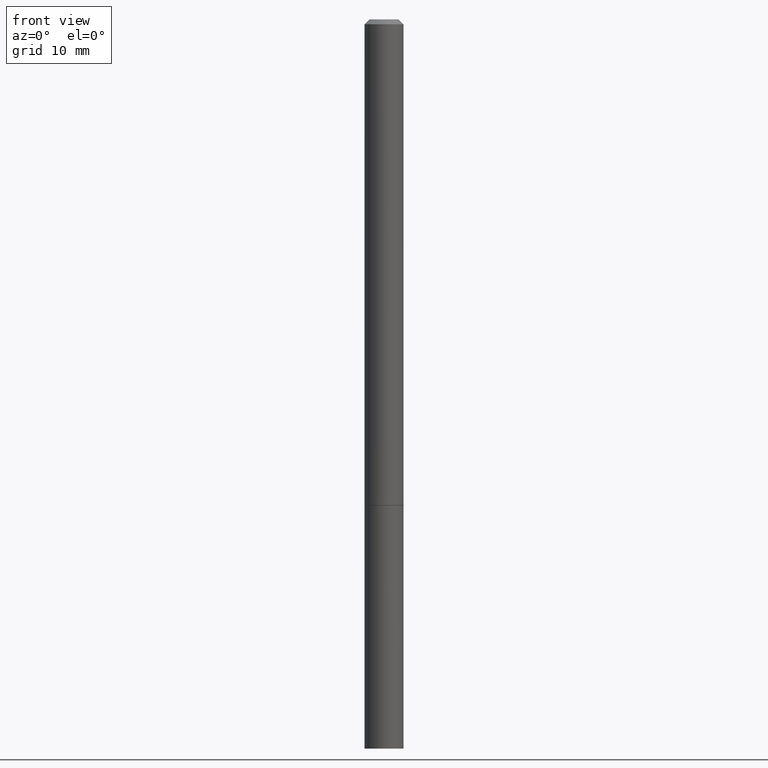
[diagram: clean part render]
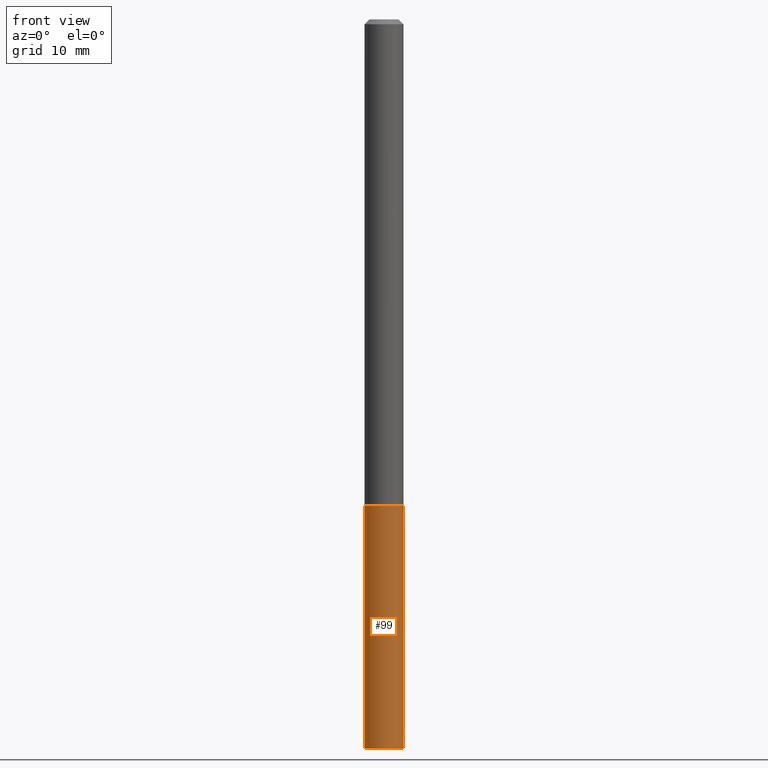
[diagram: same view with one face highlighted and labeled with its STEP entity id]
A machine part, front view. The second image highlights one B-rep face of the part: STEP entity #99.
In plain terms, the highlighted cylindrical surface (edge-blend (fillet) strip) has radius 2.0002 mm, axis along (-0, 0, 1).
Its self-contained STEP definition (entity closure, byte-faithful):
#14 = VERTEX_POINT ( 'NONE', #362 ) ;
#17 = ORIENTED_EDGE ( 'NONE', *, *, #106, .T. ) ;
#19 = EDGE_CURVE ( 'NONE', #14, #48, #20, .T. ) ;
#20 = LINE ( 'NONE', #168, #198 ) ;
#26 = DIRECTION ( 'NONE',  ( -2.445468806185136597E-29, 3.491481338843145583E-15, 1.000000000000000000 ) ) ;
#48 = VERTEX_POINT ( 'NONE', #339 ) ;
#49 = VERTEX_POINT ( 'NONE', #359 ) ;
#52 = CARTESIAN_POINT ( 'NONE',  ( 0.000000000000000000, 0.000000000000000000, 0.000000000000000000 ) ) ;
#56 = DIRECTION ( 'NONE',  ( -2.445468806185136597E-29, 3.491481338843145583E-15, 1.000000000000000000 ) ) ;
#78 = DIRECTION ( 'NONE',  ( -2.445468806185136877E-29, 3.491481338843145188E-15, 1.000000000000000000 ) ) ;
#87 = CARTESIAN_POINT ( 'NONE',  ( 7.220980290903470182E-29, -1.030964609733603853E-14, -2.952799999999999869 ) ) ;
#88 = DIRECTION ( 'NONE',  ( 1.000000000000000000, -6.982962677686261977E-15, 0.000000000000000000 ) ) ;
#94 = CIRCLE ( 'NONE', #146, 0.07875000000000000056 ) ;
#99 = ADVANCED_FACE ( 'NONE', ( #223 ), #203, .T. ) ;
#105 = DIRECTION ( 'NONE',  ( 1.000000000000000000, -6.982962677686265922E-15, 4.876176775795935232E-29 ) ) ;
#106 = EDGE_CURVE ( 'NONE', #49, #355, #336, .T. ) ;
#109 = DIRECTION ( 'NONE',  ( -2.445468806185136877E-29, 3.491481338843145188E-15, 1.000000000000000000 ) ) ;
#124 = CARTESIAN_POINT ( 'NONE',  ( 0.07875000000000000056, -7.422889326380523475E-15, -1.968499999999999694 ) ) ;
#132 = ORIENTED_EDGE ( 'NONE', *, *, #19, .F. ) ;
#137 = EDGE_LOOP ( 'NONE', ( #132, #218, #17, #156 ) ) ;
#138 = VECTOR ( 'NONE', #78, 39.37007874015748143 ) ;
#146 = AXIS2_PLACEMENT_3D ( 'NONE', #87, #261, #344 ) ;
#156 = ORIENTED_EDGE ( 'NONE', *, *, #167, .F. ) ;
#167 = EDGE_CURVE ( 'NONE', #48, #355, #337, .T. ) ;
#168 = CARTESIAN_POINT ( 'NONE',  ( -0.07875000000000000056, 5.595524044110789003E-16, -3.873661383575737792E-30 ) ) ;
#171 = EDGE_CURVE ( 'NONE', #14, #49, #94, .T. ) ;
#198 = VECTOR ( 'NONE', #109, 39.37007874015748143 ) ;
#203 = CYLINDRICAL_SURFACE ( 'NONE', #345, 0.07875000000000000056 ) ;
#212 = CARTESIAN_POINT ( 'NONE',  ( 4.813905344975440714E-29, -6.872981015512730918E-15, -1.968499999999999694 ) ) ;
#218 = ORIENTED_EDGE ( 'NONE', *, *, #171, .T. ) ;
#223 = FACE_OUTER_BOUND ( 'NONE', #137, .T. ) ;
#250 = CARTESIAN_POINT ( 'NONE',  ( 0.07875000000000000056, -5.499083108677934443E-16, 3.839989210939299016E-30 ) ) ;
#261 = DIRECTION ( 'NONE',  ( -2.445468806185136597E-29, 3.491481338843145583E-15, 1.000000000000000000 ) ) ;
#336 = LINE ( 'NONE', #250, #138 ) ;
#337 = CIRCLE ( 'NONE', #341, 0.07875000000000000056 ) ;
#339 = CARTESIAN_POINT ( 'NONE',  ( -0.07875000000000000056, -8.031761152013305527E-15, -1.968499999999999694 ) ) ;
#341 = AXIS2_PLACEMENT_3D ( 'NONE', #212, #56, #88 ) ;
#344 = DIRECTION ( 'NONE',  ( 1.000000000000000000, -6.982962677686261977E-15, 0.000000000000000000 ) ) ;
#345 = AXIS2_PLACEMENT_3D ( 'NONE', #52, #26, #105 ) ;
#355 = VERTEX_POINT ( 'NONE', #124 ) ;
#359 = CARTESIAN_POINT ( 'NONE',  ( 0.07875000000000000056, -1.085955440820383187E-14, -2.952799999999999869 ) ) ;
#362 = CARTESIAN_POINT ( 'NONE',  ( -0.07875000000000000056, -8.031761152013305527E-15, -2.952799999999999869 ) ) ;